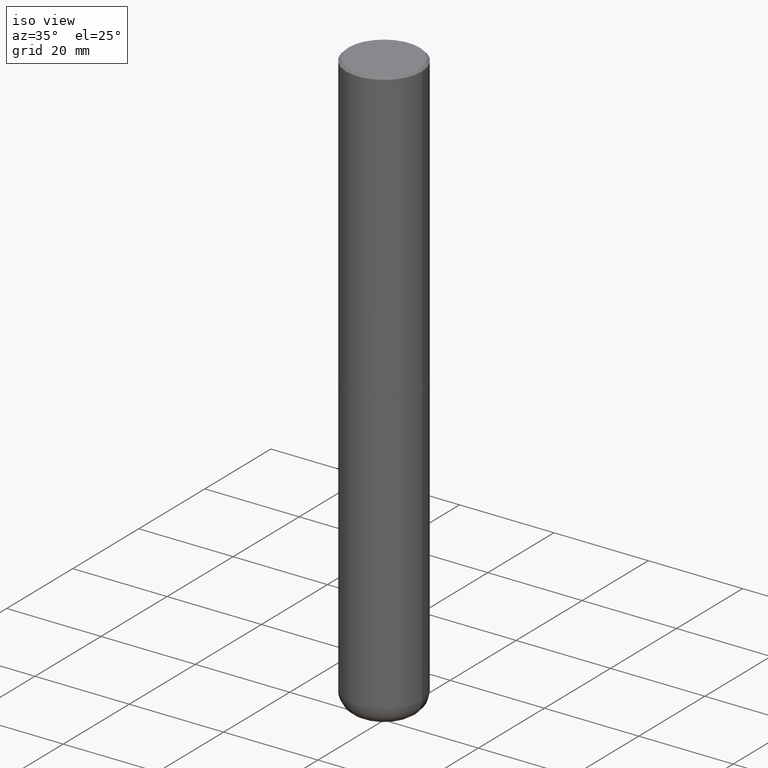
[diagram: clean part render]
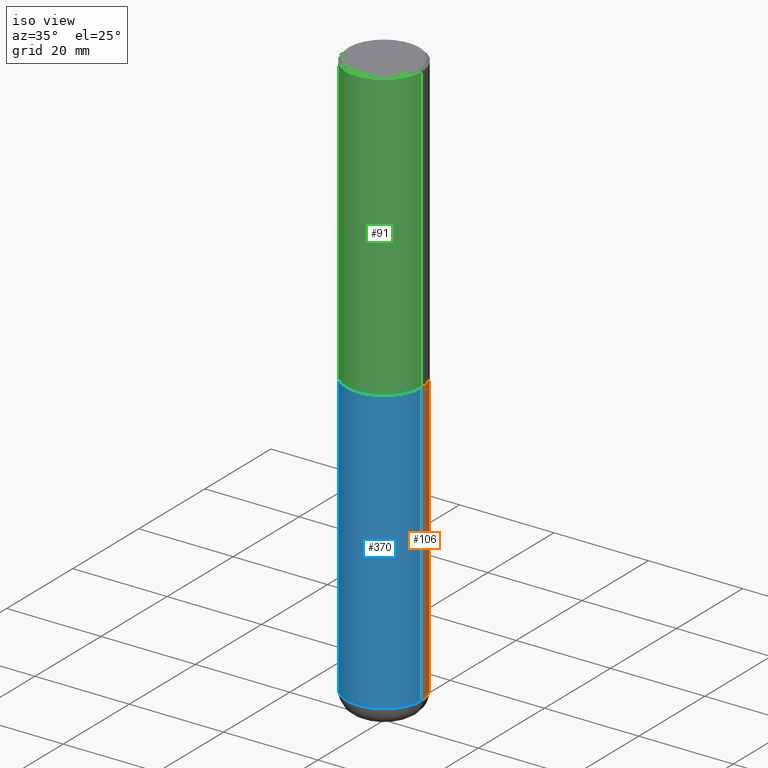
[diagram: same view with three faces highlighted in distinct colors, each labeled with its STEP entity id]
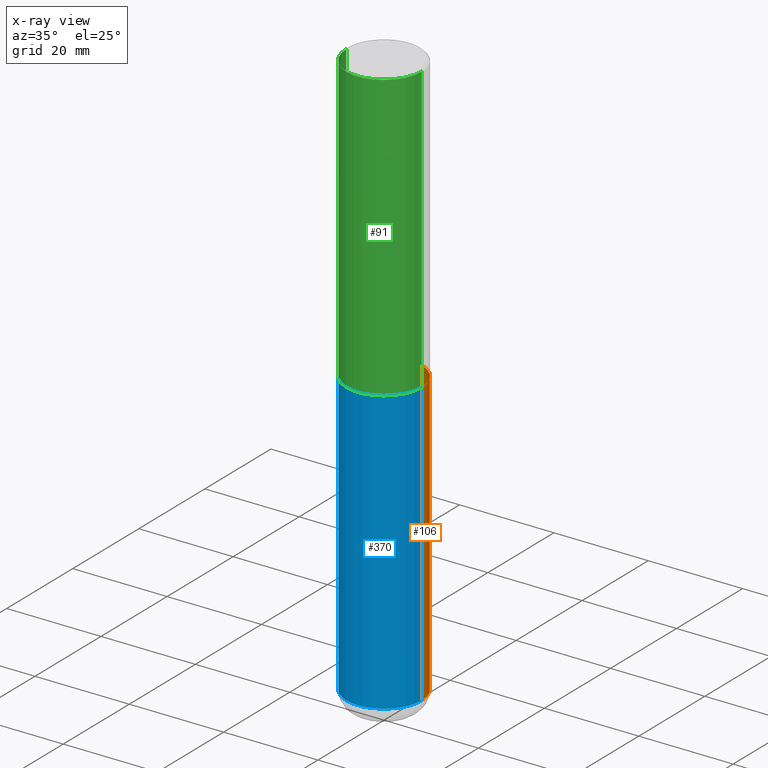
[diagram: x-ray of the same camera — body ghosted, the three highlighted faces saturated]
A machine part, iso view with three faces highlighted in distinct colors.
The next image is the same camera in x-ray (body ghosted, the three faces saturated) — at least one of them is partly hidden behind the body in this view.
Their STEP definitions:

[orange] entity #106 — the highlighted cylindrical surface (partial cylindrical patch) has radius 7.9997 mm, axis along (-0, 0, 1).
#15 = LINE ( 'NONE', #22, #219 ) ;
#22 = CARTESIAN_POINT ( 'NONE',  ( 0.3149500000000000077, -2.199284095337289871E-15, 1.535751875536930130E-29 ) ) ;
#26 = FACE_OUTER_BOUND ( 'NONE', #222, .T. ) ;
#29 = CARTESIAN_POINT ( 'NONE',  ( -0.3149500000000003408, -1.439486445570453933E-14, -4.763799999999999812 ) ) ;
#44 = DIRECTION ( 'NONE',  ( -2.445468806185136597E-29, 3.491481338843145583E-15, 1.000000000000000000 ) ) ;
#76 = CARTESIAN_POINT ( 'NONE',  ( -0.3149500000000000077, -1.027107584639690030E-14, -2.401599999999999735 ) ) ;
#104 = CARTESIAN_POINT ( 'NONE',  ( 1.164972429890475298E-28, -1.663271880198097531E-14, -4.763799999999999812 ) ) ;
#106 = ADVANCED_FACE ( 'NONE', ( #26 ), #257, .T. ) ;
#116 = CARTESIAN_POINT ( 'NONE',  ( 0.3149500000000003408, -1.883200289731826676E-14, -4.763799999999999812 ) ) ;
#118 = CARTESIAN_POINT ( 'NONE',  ( 5.873037884934223228E-29, -8.385141583365697263E-15, -2.401599999999999735 ) ) ;
#131 = CARTESIAN_POINT ( 'NONE',  ( 0.3149500000000000077, -1.058442567870298871E-14, -2.401599999999999735 ) ) ;
#157 = DIRECTION ( 'NONE',  ( 1.000000000000000000, -6.982962677686266711E-15, 4.876176775795936353E-29 ) ) ;
#178 = AXIS2_PLACEMENT_3D ( 'NONE', #104, #400, #335 ) ;
#182 = VECTOR ( 'NONE', #328, 39.37007874015748143 ) ;
#185 = CIRCLE ( 'NONE', #178, 0.3149500000000000077 ) ;
#188 = VERTEX_POINT ( 'NONE', #131 ) ;
#191 = ORIENTED_EDGE ( 'NONE', *, *, #246, .T. ) ;
#200 = CARTESIAN_POINT ( 'NONE',  ( -0.3149500000000000077, 2.237854346276435590E-15, -1.549218606675782676E-29 ) ) ;
#201 = ORIENTED_EDGE ( 'NONE', *, *, #402, .F. ) ;
#203 = EDGE_CURVE ( 'NONE', #227, #258, #330, .T. ) ;
#212 = DIRECTION ( 'NONE',  ( -2.445468806185136877E-29, 3.491481338843145188E-15, 1.000000000000000000 ) ) ;
#219 = VECTOR ( 'NONE', #212, 39.37007874015748143 ) ;
#222 = EDGE_LOOP ( 'NONE', ( #191, #329, #302, #201 ) ) ;
#227 = VERTEX_POINT ( 'NONE', #29 ) ;
#240 = AXIS2_PLACEMENT_3D ( 'NONE', #289, #361, #157 ) ;
#246 = EDGE_CURVE ( 'NONE', #349, #227, #185, .T. ) ;
#257 = CYLINDRICAL_SURFACE ( 'NONE', #240, 0.3149500000000000077 ) ;
#258 = VERTEX_POINT ( 'NONE', #76 ) ;
#289 = CARTESIAN_POINT ( 'NONE',  ( 0.000000000000000000, 0.000000000000000000, 0.000000000000000000 ) ) ;
#302 = ORIENTED_EDGE ( 'NONE', *, *, #338, .F. ) ;
#328 = DIRECTION ( 'NONE',  ( -2.445468806185136877E-29, 3.491481338843145188E-15, 1.000000000000000000 ) ) ;
#329 = ORIENTED_EDGE ( 'NONE', *, *, #203, .T. ) ;
#330 = LINE ( 'NONE', #200, #182 ) ;
#335 = DIRECTION ( 'NONE',  ( 1.000000000000000000, -6.982962677686269866E-15, 0.000000000000000000 ) ) ;
#338 = EDGE_CURVE ( 'NONE', #188, #258, #341, .T. ) ;
#339 = DIRECTION ( 'NONE',  ( 1.000000000000000000, -6.982962677686269866E-15, 0.000000000000000000 ) ) ;
#341 = CIRCLE ( 'NONE', #397, 0.3149500000000000077 ) ;
#349 = VERTEX_POINT ( 'NONE', #116 ) ;
#361 = DIRECTION ( 'NONE',  ( -2.445468806185136597E-29, 3.491481338843145583E-15, 1.000000000000000000 ) ) ;
#397 = AXIS2_PLACEMENT_3D ( 'NONE', #118, #44, #339 ) ;
#400 = DIRECTION ( 'NONE',  ( -2.445468806185136597E-29, 3.491481338843145583E-15, 1.000000000000000000 ) ) ;
#402 = EDGE_CURVE ( 'NONE', #349, #188, #15, .T. ) ;

[blue] entity #370 — the highlighted cylindrical surface (partial cylindrical patch) has radius 7.9997 mm, axis along (-0, 0, 1).
#1 = CARTESIAN_POINT ( 'NONE',  ( 1.164972429890475298E-28, -1.663271880198097531E-14, -4.763799999999999812 ) ) ;
#15 = LINE ( 'NONE', #22, #219 ) ;
#21 = AXIS2_PLACEMENT_3D ( 'NONE', #217, #151, #405 ) ;
#22 = CARTESIAN_POINT ( 'NONE',  ( 0.3149500000000000077, -2.199284095337289871E-15, 1.535751875536930130E-29 ) ) ;
#29 = CARTESIAN_POINT ( 'NONE',  ( -0.3149500000000003408, -1.439486445570453933E-14, -4.763799999999999812 ) ) ;
#45 = CYLINDRICAL_SURFACE ( 'NONE', #21, 0.3149500000000000077 ) ;
#71 = ORIENTED_EDGE ( 'NONE', *, *, #203, .F. ) ;
#76 = CARTESIAN_POINT ( 'NONE',  ( -0.3149500000000000077, -1.027107584639690030E-14, -2.401599999999999735 ) ) ;
#84 = EDGE_CURVE ( 'NONE', #258, #188, #214, .T. ) ;
#93 = DIRECTION ( 'NONE',  ( -2.445468806185136597E-29, 3.491481338843145583E-15, 1.000000000000000000 ) ) ;
#101 = ORIENTED_EDGE ( 'NONE', *, *, #84, .F. ) ;
#112 = EDGE_CURVE ( 'NONE', #227, #349, #347, .T. ) ;
#116 = CARTESIAN_POINT ( 'NONE',  ( 0.3149500000000003408, -1.883200289731826676E-14, -4.763799999999999812 ) ) ;
#131 = CARTESIAN_POINT ( 'NONE',  ( 0.3149500000000000077, -1.058442567870298871E-14, -2.401599999999999735 ) ) ;
#133 = AXIS2_PLACEMENT_3D ( 'NONE', #1, #93, #418 ) ;
#142 = AXIS2_PLACEMENT_3D ( 'NONE', #296, #190, #298 ) ;
#151 = DIRECTION ( 'NONE',  ( -2.445468806185136597E-29, 3.491481338843145583E-15, 1.000000000000000000 ) ) ;
#153 = FACE_OUTER_BOUND ( 'NONE', #401, .T. ) ;
#182 = VECTOR ( 'NONE', #328, 39.37007874015748143 ) ;
#188 = VERTEX_POINT ( 'NONE', #131 ) ;
#190 = DIRECTION ( 'NONE',  ( -2.445468806185136597E-29, 3.491481338843145583E-15, 1.000000000000000000 ) ) ;
#200 = CARTESIAN_POINT ( 'NONE',  ( -0.3149500000000000077, 2.237854346276435590E-15, -1.549218606675782676E-29 ) ) ;
#203 = EDGE_CURVE ( 'NONE', #227, #258, #330, .T. ) ;
#212 = DIRECTION ( 'NONE',  ( -2.445468806185136877E-29, 3.491481338843145188E-15, 1.000000000000000000 ) ) ;
#214 = CIRCLE ( 'NONE', #142, 0.3149500000000000077 ) ;
#217 = CARTESIAN_POINT ( 'NONE',  ( 0.000000000000000000, 0.000000000000000000, 0.000000000000000000 ) ) ;
#219 = VECTOR ( 'NONE', #212, 39.37007874015748143 ) ;
#227 = VERTEX_POINT ( 'NONE', #29 ) ;
#258 = VERTEX_POINT ( 'NONE', #76 ) ;
#261 = ORIENTED_EDGE ( 'NONE', *, *, #112, .T. ) ;
#296 = CARTESIAN_POINT ( 'NONE',  ( 5.873037884934223228E-29, -8.385141583365697263E-15, -2.401599999999999735 ) ) ;
#298 = DIRECTION ( 'NONE',  ( 1.000000000000000000, -6.982962677686269866E-15, 0.000000000000000000 ) ) ;
#300 = ORIENTED_EDGE ( 'NONE', *, *, #402, .T. ) ;
#328 = DIRECTION ( 'NONE',  ( -2.445468806185136877E-29, 3.491481338843145188E-15, 1.000000000000000000 ) ) ;
#330 = LINE ( 'NONE', #200, #182 ) ;
#347 = CIRCLE ( 'NONE', #133, 0.3149500000000000077 ) ;
#349 = VERTEX_POINT ( 'NONE', #116 ) ;
#370 = ADVANCED_FACE ( 'NONE', ( #153 ), #45, .T. ) ;
#401 = EDGE_LOOP ( 'NONE', ( #71, #261, #300, #101 ) ) ;
#402 = EDGE_CURVE ( 'NONE', #349, #188, #15, .T. ) ;
#405 = DIRECTION ( 'NONE',  ( 1.000000000000000000, -6.982962677686266711E-15, 4.876176775795936353E-29 ) ) ;
#418 = DIRECTION ( 'NONE',  ( 1.000000000000000000, -6.982962677686269866E-15, 0.000000000000000000 ) ) ;

[green] entity #91 — the highlighted cylindrical surface (partial cylindrical patch) has radius 7.9997 mm, axis along (-0, 0, 1).
#8 = EDGE_CURVE ( 'NONE', #292, #60, #270, .T. ) ;
#10 = DIRECTION ( 'NONE',  ( -2.445468806185136877E-29, 3.491481338843145188E-15, 1.000000000000000000 ) ) ;
#34 = CYLINDRICAL_SURFACE ( 'NONE', #202, 0.3149500000000001743 ) ;
#36 = EDGE_CURVE ( 'NONE', #60, #42, #89, .T. ) ;
#39 = ORIENTED_EDGE ( 'NONE', *, *, #8, .F. ) ;
#42 = VERTEX_POINT ( 'NONE', #109 ) ;
#59 = CARTESIAN_POINT ( 'NONE',  ( 0.3149500000000002853, -1.058093419736414728E-14, -2.400599999999999845 ) ) ;
#60 = VERTEX_POINT ( 'NONE', #136 ) ;
#89 = CIRCLE ( 'NONE', #311, 0.3149500000000000077 ) ;
#91 = ADVANCED_FACE ( 'NONE', ( #381 ), #34, .T. ) ;
#109 = CARTESIAN_POINT ( 'NONE',  ( 0.3149500000000000077, -2.230543471175007450E-15, -0.02000000000000007327 ) ) ;
#129 = ORIENTED_EDGE ( 'NONE', *, *, #233, .T. ) ;
#136 = CARTESIAN_POINT ( 'NONE',  ( -0.3149500000000000077, 2.129454468560426573E-15, -0.02000000000000007327 ) ) ;
#141 = DIRECTION ( 'NONE',  ( 1.000000000000000000, -6.982962677686266711E-15, 0.000000000000000000 ) ) ;
#154 = VERTEX_POINT ( 'NONE', #59 ) ;
#156 = EDGE_LOOP ( 'NONE', ( #39, #129, #208, #334 ) ) ;
#170 = VECTOR ( 'NONE', #10, 39.37007874015748143 ) ;
#202 = AXIS2_PLACEMENT_3D ( 'NONE', #260, #350, #321 ) ;
#208 = ORIENTED_EDGE ( 'NONE', *, *, #373, .T. ) ;
#233 = EDGE_CURVE ( 'NONE', #292, #154, #371, .T. ) ;
#236 = VECTOR ( 'NONE', #247, 39.37007874015748143 ) ;
#247 = DIRECTION ( 'NONE',  ( -2.445468806185136877E-29, 3.491481338843145188E-15, 1.000000000000000000 ) ) ;
#260 = CARTESIAN_POINT ( 'NONE',  ( 0.000000000000000000, 0.000000000000000000, 0.000000000000000000 ) ) ;
#270 = LINE ( 'NONE', #369, #170 ) ;
#277 = DIRECTION ( 'NONE',  ( -2.445468806185136597E-29, 3.491481338843145583E-15, 1.000000000000000000 ) ) ;
#292 = VERTEX_POINT ( 'NONE', #301 ) ;
#301 = CARTESIAN_POINT ( 'NONE',  ( -0.3149500000000002853, -1.987885518125419637E-15, -2.400599999999999845 ) ) ;
#304 = CARTESIAN_POINT ( 'NONE',  ( 4.890937612370290675E-31, -6.982962677686316261E-17, -0.02000000000000007327 ) ) ;
#310 = LINE ( 'NONE', #406, #236 ) ;
#311 = AXIS2_PLACEMENT_3D ( 'NONE', #304, #277, #141 ) ;
#321 = DIRECTION ( 'NONE',  ( 1.000000000000000000, -6.982962677686265922E-15, 4.876176775795935232E-29 ) ) ;
#327 = CARTESIAN_POINT ( 'NONE',  ( 5.870592416128037625E-29, -8.381650102026854256E-15, -2.400599999999999845 ) ) ;
#334 = ORIENTED_EDGE ( 'NONE', *, *, #36, .F. ) ;
#350 = DIRECTION ( 'NONE',  ( -2.445468806185136597E-29, 3.491481338843145583E-15, 1.000000000000000000 ) ) ;
#369 = CARTESIAN_POINT ( 'NONE',  ( -0.3149500000000001743, 2.237854346276436774E-15, -1.549218606675783237E-29 ) ) ;
#371 = CIRCLE ( 'NONE', #379, 0.3149500000000002853 ) ;
#373 = EDGE_CURVE ( 'NONE', #154, #42, #310, .T. ) ;
#379 = AXIS2_PLACEMENT_3D ( 'NONE', #327, #391, #394 ) ;
#381 = FACE_OUTER_BOUND ( 'NONE', #156, .T. ) ;
#391 = DIRECTION ( 'NONE',  ( -2.445468806185136597E-29, 3.491481338843145583E-15, 1.000000000000000000 ) ) ;
#394 = DIRECTION ( 'NONE',  ( 1.000000000000000000, -6.982962677686269866E-15, 0.000000000000000000 ) ) ;
#406 = CARTESIAN_POINT ( 'NONE',  ( 0.3149500000000001743, -2.199284095337290660E-15, 1.535751875536930690E-29 ) ) ;